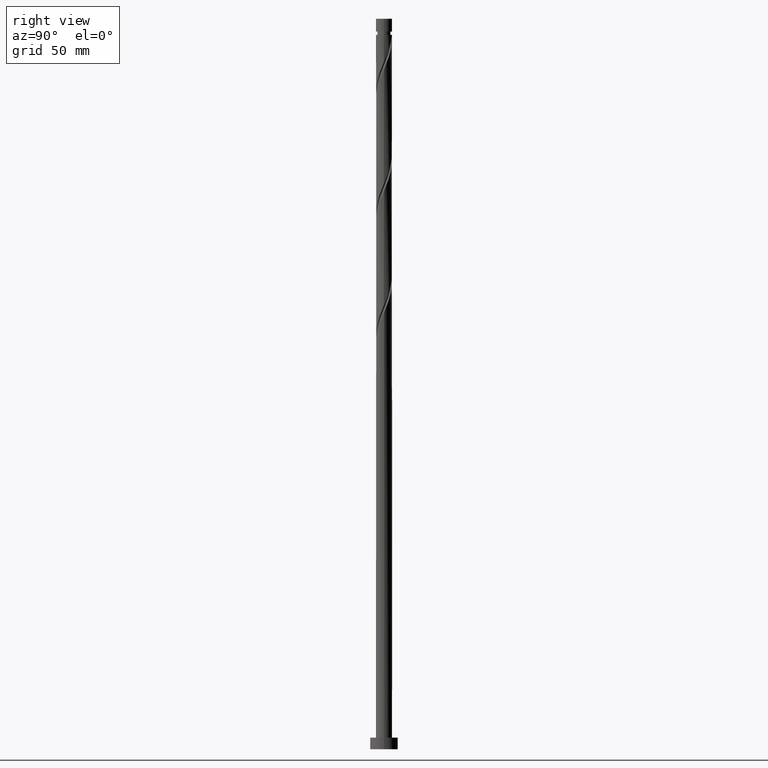
[diagram: clean part render]
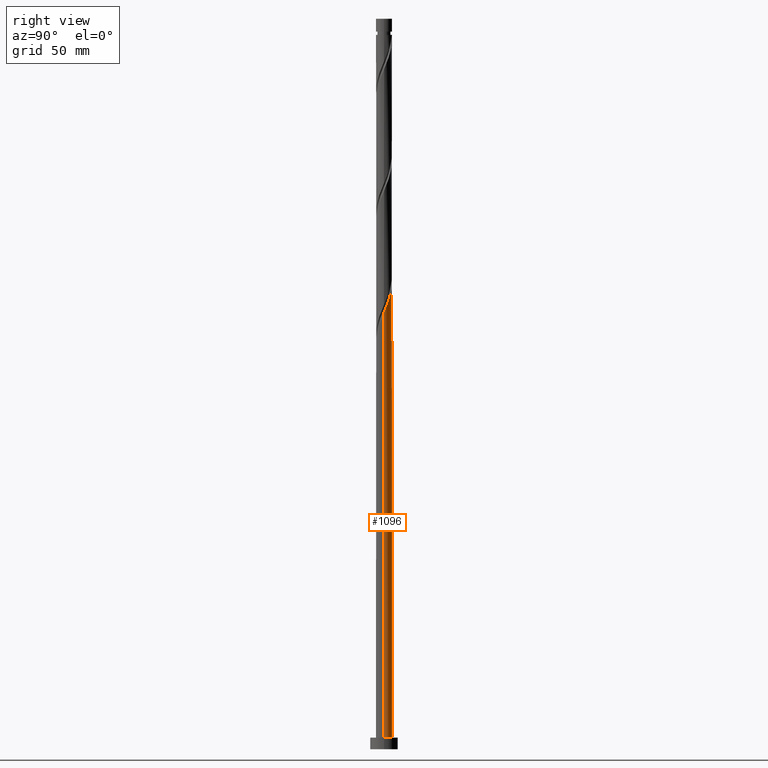
[diagram: same view with one face highlighted and labeled with its STEP entity id]
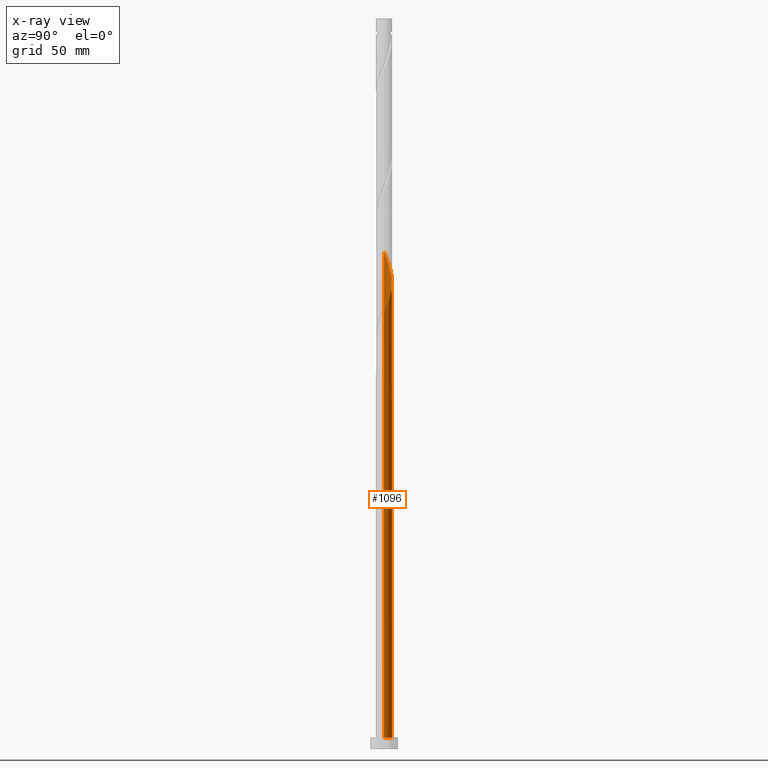
[diagram: x-ray of the same camera — body ghosted, the highlighted face saturated]
A machine part, right view. The second image highlights one B-rep face of the part: STEP entity #1096.
The next image is the same camera in x-ray: the body ghosted, the highlighted face saturated — about 0% of this face is hidden behind the body in this view.
In plain terms, the highlighted cylindrical surface (edge-blend (fillet) strip) has radius 3.5 mm, axis along (-0, -0, -1).
Its self-contained STEP definition (entity closure, byte-faithful):
#3 = CARTESIAN_POINT ( 'NONE',  ( 0.6964912059746368733, 3.429999999999997939, 150.5871629832717531 ) ) ;
#7 = CARTESIAN_POINT ( 'NONE',  ( 1.594031268282363190, 3.115937148874821983, 197.4621629832717531 ) ) ;
#18 = CARTESIAN_POINT ( 'NONE',  ( -1.082959389832018005, 3.351524288208268754, 151.5246629832717247 ) ) ;
#26 = ORIENTED_EDGE ( 'NONE', *, *, #1189, .F. ) ;
#38 = VERTEX_POINT ( 'NONE', #672 ) ;
#63 = CARTESIAN_POINT ( 'NONE',  ( -3.115937148874821983, 1.594031268282363190, 158.0871629832717815 ) ) ;
#106 = CARTESIAN_POINT ( 'NONE',  ( 3.500000000000002220, 0.3517632353407328383, 189.1259169843292511 ) ) ;
#121 = CARTESIAN_POINT ( 'NONE',  ( 3.351524288208268754, 1.082959389832017116, 190.8996629832717247 ) ) ;
#126 = DIRECTION ( 'NONE',  ( 1.000000000000000000, 0.000000000000000000, 0.000000000000000000 ) ) ;
#142 = CARTESIAN_POINT ( 'NONE',  ( 3.189018865137824399, 1.442275520764011665, 191.8371629832717531 ) ) ;
#181 = CARTESIAN_POINT ( 'NONE',  ( -3.026513442067374715, 1.801591651696004659, 160.8996629832717815 ) ) ;
#183 = VERTEX_POINT ( 'NONE', #3 ) ;
#206 = CARTESIAN_POINT ( 'NONE',  ( -1.945113067390055850, 2.936332959584742497, 157.1496629832717531 ) ) ;
#207 =( BOUNDED_CURVE ( )  B_SPLINE_CURVE ( 2, ( #467, #18, #1079, #456, #1049, #629, #1067, #1422, #63, #1696, #996, #531, #1705, #1551, #1840 ),
 .UNSPECIFIED., .F., .T. ) 
 B_SPLINE_CURVE_WITH_KNOTS ( ( 3, 2, 2, 2, 2, 2, 2, 3 ),
 ( 0.000000000000000000, 0.008928571428571396851, 0.01785714285714290472, 0.02678571428571430157, 0.03571428571428569843, 0.04464285714285709528, 0.05357142857142860315, 0.05453034012992180601 ),
 .UNSPECIFIED. ) 
 CURVE ( )  GEOMETRIC_REPRESENTATION_ITEM ( )  RATIONAL_B_SPLINE_CURVE ( ( 0.9090909090909449208, 0.9033747362666201264, 0.9090909090909449208, 0.9033747362666201264, 0.9090909090909449208, 0.9033747362666201264, 0.9090909090909449208, 0.9033747362666201264, 0.9090909090909449208, 0.9033747362666201264, 0.9090909090909449208, 0.9033747362666201264, 0.9090909090909449208, 0.9084770030214869285, 0.9079949616362154030 ) ) 
 REPRESENTATION_ITEM ( '' )  );
#216 = DIRECTION ( 'NONE',  ( -0.000000000000000000, -0.000000000000000000, -1.000000000000000000 ) ) ;
#219 = EDGE_CURVE ( 'NONE', #892, #297, #230, .T. ) ;
#223 = CARTESIAN_POINT ( 'NONE',  ( -3.500000000000000888, 0.3517632353407167956, 164.5484089822142835 ) ) ;
#230 = CIRCLE ( 'NONE', #1281, 3.500000000000000000 ) ;
#260 = CARTESIAN_POINT ( 'NONE',  ( -0.4784591944698668997, 3.489497513067245205, 153.3996629832717247 ) ) ;
#261 = CARTESIAN_POINT ( 'NONE',  ( 0.08421808617630736904, 3.498986612429495047, 201.2121629832718099 ) ) ;
#276 = ORIENTED_EDGE ( 'NONE', *, *, #1120, .F. ) ;
#286 = CARTESIAN_POINT ( 'NONE',  ( -1.442275520764012553, 3.189018865137823511, 204.9621629832717815 ) ) ;
#297 = VERTEX_POINT ( 'NONE', #1221 ) ;
#327 = CARTESIAN_POINT ( 'NONE',  ( -3.500000000000006217, 0.04211514008235339029, 214.4372832171407310 ) ) ;
#343 = ORIENTED_EDGE ( 'NONE', *, *, #1302, .T. ) ;
#393 = CARTESIAN_POINT ( 'NONE',  ( -2.429884585352364290, 2.549740574321678999, 207.7746629832716962 ) ) ;
#410 = CARTESIAN_POINT ( 'NONE',  ( 3.500000000000005329, 6.194196011433276529E-16, 188.2876459053656788 ) ) ;
#440 = CARTESIAN_POINT ( 'NONE',  ( -3.498986612429495491, 0.08421808617630661964, 214.3371629832717815 ) ) ;
#442 = ORIENTED_EDGE ( 'NONE', *, *, #1872, .F. ) ;
#456 = CARTESIAN_POINT ( 'NONE',  ( -1.801591651696006213, 3.026513442067377824, 153.3996629832717531 ) ) ;
#467 = CARTESIAN_POINT ( 'NONE',  ( -0.6964912059746359851, 3.430000000000005489, 150.5871629832717531 ) ) ;
#477 = CARTESIAN_POINT ( 'NONE',  ( -3.500000000000005329, -1.119433014114447406E-15, 214.5376459053657641 ) ) ;
#485 = VECTOR ( 'NONE', #216, 1000.000000000000000 ) ;
#487 = CARTESIAN_POINT ( 'NONE',  ( -3.429999999999998384, 0.6964912059746363182, 163.7121629832717247 ) ) ;
#497 = CARTESIAN_POINT ( 'NONE',  ( -1.242949469174664312, 3.295541338164893919, 155.2746629832718099 ) ) ;
#515 = CARTESIAN_POINT ( 'NONE',  ( -0.08421808617630573146, 3.498986612429489718, 152.4621629832717815 ) ) ;
#524 = DIRECTION ( 'NONE',  ( -0.000000000000000000, -0.000000000000000000, -1.000000000000000000 ) ) ;
#531 = CARTESIAN_POINT ( 'NONE',  ( -3.489497513067249201, 0.4784591944698682320, 160.8996629832716962 ) ) ;
#546 = CARTESIAN_POINT ( 'NONE',  ( 3.500000000000005329, 6.194196011433275543E-16, 188.2876459053657072 ) ) ;
#556 = CARTESIAN_POINT ( 'NONE',  ( -1.082959389832018005, 3.351524288208268754, 204.0246629832717247 ) ) ;
#578 = CARTESIAN_POINT ( 'NONE',  ( 2.247426820855869423, 2.683108772468555170, 195.5871629832718384 ) ) ;
#589 = CARTESIAN_POINT ( 'NONE',  ( -3.489497513067249201, 0.4784591944698682320, 213.3996629832717531 ) ) ;
#629 = CARTESIAN_POINT ( 'NONE',  ( -2.429884585352364290, 2.549740574321678999, 155.2746629832717531 ) ) ;
#630 = CARTESIAN_POINT ( 'NONE',  ( -3.499999999999999112, -7.776328004715082621E-15, 165.3866800611778842 ) ) ;
#645 = CARTESIAN_POINT ( 'NONE',  ( -3.351524288208263425, 1.082959389832017116, 162.7746629832718099 ) ) ;
#658 = LINE ( 'NONE', #1853, #1597 ) ;
#668 = ORIENTED_EDGE ( 'NONE', *, *, #796, .F. ) ;
#672 = CARTESIAN_POINT ( 'NONE',  ( -0.6964912059746359851, 3.430000000000005489, 150.5871629832717531 ) ) ;
#706 = CARTESIAN_POINT ( 'NONE',  ( 0.4784591944698689536, 3.489497513067249201, 200.2746629832716962 ) ) ;
#715 = CARTESIAN_POINT ( 'NONE',  ( 0.000000000000000000, 0.000000000000000000, 5.000000000000000000 ) ) ;
#720 = DIRECTION ( 'NONE',  ( -0.000000000000000000, -0.000000000000000000, -1.000000000000000000 ) ) ;
#772 = VERTEX_POINT ( 'NONE', #831 ) ;
#777 = CIRCLE ( 'NONE', #1060, 3.500000000000000000 ) ;
#796 = EDGE_CURVE ( 'NONE', #1051, #772, #1297, .T. ) ;
#803 = CARTESIAN_POINT ( 'NONE',  ( -1.594031268282360303, 3.115937148874817986, 156.2121629832717815 ) ) ;
#812 = VECTOR ( 'NONE', #524, 1000.000000000000000 ) ;
#821 = CARTESIAN_POINT ( 'NONE',  ( 3.500000000000000000, 4.286263797015736595E-16, 5.000000000000000000 ) ) ;
#831 = CARTESIAN_POINT ( 'NONE',  ( -3.499999999999999112, -7.776328004715082621E-15, 165.3866800611778842 ) ) ;
#845 = EDGE_CURVE ( 'NONE', #1176, #297, #953, .T. ) ;
#855 = EDGE_LOOP ( 'NONE', ( #276, #1526, #899, #1274, #26, #343, #442, #668 ) ) ;
#878 = DIRECTION ( 'NONE',  ( -1.000000000000000000, 0.000000000000000000, 0.000000000000000000 ) ) ;
#890 = CARTESIAN_POINT ( 'NONE',  ( -2.115738118524185918, 2.788127008194528411, 206.8371629832717531 ) ) ;
#892 = VERTEX_POINT ( 'NONE', #821 ) ;
#896 = CARTESIAN_POINT ( 'NONE',  ( 1.945113067390059403, 2.936332959584744717, 196.5246629832716962 ) ) ;
#899 = ORIENTED_EDGE ( 'NONE', *, *, #219, .T. ) ;
#940 = EDGE_CURVE ( 'NONE', #1883, #892, #658, .T. ) ;
#951 = CARTESIAN_POINT ( 'NONE',  ( -2.549740574321675446, 2.429884585352360737, 159.0246629832718099 ) ) ;
#953 = LINE ( 'NONE', #1701, #485 ) ;
#996 = CARTESIAN_POINT ( 'NONE',  ( -3.392519425616074891, 0.8607043318222677986, 159.9621629832717531 ) ) ;
#1012 = CARTESIAN_POINT ( 'NONE',  ( -3.500000000000005329, -1.119433014114447406E-15, 214.5376459053657356 ) ) ;
#1022 = CARTESIAN_POINT ( 'NONE',  ( -3.115937148874821983, 1.594031268282363190, 210.5871629832717247 ) ) ;
#1049 = CARTESIAN_POINT ( 'NONE',  ( -2.115738118524185918, 2.788127008194528411, 154.3371629832717815 ) ) ;
#1051 = VERTEX_POINT ( 'NONE', #1012 ) ;
#1060 = AXIS2_PLACEMENT_3D ( 'NONE', #1130, #1184, #1774 ) ;
#1067 = CARTESIAN_POINT ( 'NONE',  ( -2.683108772468555614, 2.247426820855869423, 156.2121629832717531 ) ) ;
#1079 = CARTESIAN_POINT ( 'NONE',  ( -1.442275520764012553, 3.189018865137823511, 152.4621629832717815 ) ) ;
#1080 = CARTESIAN_POINT ( 'NONE',  ( -3.189018865137818182, 1.442275520764010777, 161.8371629832717531 ) ) ;
#1096 = ADVANCED_FACE ( 'NONE', ( #1924 ), #1194, .T. ) ;
#1100 = CARTESIAN_POINT ( 'NONE',  ( -2.788127008194524858, 2.115738118524183253, 159.9621629832717247 ) ) ;
#1109 = CARTESIAN_POINT ( 'NONE',  ( -0.8607043318222656891, 3.392519425616069562, 154.3371629832718384 ) ) ;
#1111 = DIRECTION ( 'NONE',  ( -0.000000000000000000, -0.000000000000000000, -1.000000000000000000 ) ) ;
#1120 = EDGE_CURVE ( 'NONE', #1883, #1051, #1812, .T. ) ;
#1130 = CARTESIAN_POINT ( 'NONE',  ( 0.000000000000000000, 0.000000000000000000, 150.5871629832717531 ) ) ;
#1137 = CARTESIAN_POINT ( 'NONE',  ( 0.6964912059746368733, 3.429999999999997939, 150.5871629832717247 ) ) ;
#1147 = CARTESIAN_POINT ( 'NONE',  ( 1.242949469174667199, 3.295541338164897915, 198.3996629832716962 ) ) ;
#1163 = CARTESIAN_POINT ( 'NONE',  ( -1.801591651696006213, 3.026513442067377824, 205.8996629832716962 ) ) ;
#1176 = VERTEX_POINT ( 'NONE', #1663 ) ;
#1184 = DIRECTION ( 'NONE',  ( 0.000000000000000000, -0.000000000000000000, -1.000000000000000000 ) ) ;
#1189 = EDGE_CURVE ( 'NONE', #38, #1176, #207, .T. ) ;
#1194 = CYLINDRICAL_SURFACE ( 'NONE', #1813, 3.500000000000000000 ) ;
#1215 = CARTESIAN_POINT ( 'NONE',  ( -3.295541338164898360, 1.242949469174666088, 211.5246629832717247 ) ) ;
#1221 = CARTESIAN_POINT ( 'NONE',  ( -3.500000000000000000, 0.000000000000000000, 5.000000000000000000 ) ) ;
#1274 = ORIENTED_EDGE ( 'NONE', *, *, #845, .F. ) ;
#1281 = AXIS2_PLACEMENT_3D ( 'NONE', #715, #1481, #126 ) ;
#1296 = CARTESIAN_POINT ( 'NONE',  ( 0.3100230221172554645, 3.508475711791736007, 151.5246629832718099 ) ) ;
#1297 = LINE ( 'NONE', #1870, #812 ) ;
#1302 = EDGE_CURVE ( 'NONE', #38, #183, #777, .T. ) ;
#1327 = CARTESIAN_POINT ( 'NONE',  ( -0.6964912059746358741, 3.430000000000005045, 203.0871629832717815 ) ) ;
#1335 = CARTESIAN_POINT ( 'NONE',  ( -0.3100230221172543543, 3.508475711791739116, 202.1496629832716962 ) ) ;
#1347 = CARTESIAN_POINT ( 'NONE',  ( 3.430000000000005045, 0.6964912059746359851, 189.9621629832717815 ) ) ;
#1384 = CARTESIAN_POINT ( 'NONE',  ( -3.392519425616074891, 0.8607043318222677986, 212.4621629832717815 ) ) ;
#1422 = CARTESIAN_POINT ( 'NONE',  ( -2.936332959584746050, 1.945113067390058736, 157.1496629832717531 ) ) ;
#1473 =( BOUNDED_CURVE ( )  B_SPLINE_CURVE ( 2, ( #630, #223, #487, #645, #1080, #181, #1100, #951, #1552, #206, #803, #497, #1109, #260, #515, #1296, #1137 ),
 .UNSPECIFIED., .F., .T. ) 
 B_SPLINE_CURVE_WITH_KNOTS ( ( 3, 2, 2, 2, 2, 2, 2, 2, 3 ),
 ( 0.9295303401299218615, 0.9375000000000000000, 0.9464285714285713969, 0.9553571428571429047, 0.9642857142857143016, 0.9732142857142856984, 0.9821428571428570953, 0.9910714285714286031, 1.000000000000000000 ),
 .UNSPECIFIED. ) 
 CURVE ( )  GEOMETRIC_REPRESENTATION_ITEM ( )  RATIONAL_B_SPLINE_CURVE ( ( 0.9079949616362089637, 0.9039886423360716794, 0.9090909090909385926, 0.9033747362666134650, 0.9090909090909385926, 0.9033747362666134650, 0.9090909090909385926, 0.9033747362666134650, 0.9090909090909385926, 0.9033747362666134650, 0.9090909090909385926, 0.9033747362666134650, 0.9090909090909385926, 0.9033747362666134650, 0.9090909090909385926, 0.9033747362666134650, 0.9090909090909385926 ) ) 
 REPRESENTATION_ITEM ( '' )  );
#1481 = DIRECTION ( 'NONE',  ( 0.000000000000000000, 0.000000000000000000, 1.000000000000000000 ) ) ;
#1526 = ORIENTED_EDGE ( 'NONE', *, *, #940, .T. ) ;
#1551 = CARTESIAN_POINT ( 'NONE',  ( -3.500000000000004885, 0.04211514008237746826, 161.9372832171405889 ) ) ;
#1552 = CARTESIAN_POINT ( 'NONE',  ( -2.247426820855865870, 2.683108772468551617, 158.0871629832717815 ) ) ;
#1597 = VECTOR ( 'NONE', #1111, 1000.000000000000000 ) ;
#1612 = CARTESIAN_POINT ( 'NONE',  ( 2.549740574321678999, 2.429884585352363402, 194.6496629832717531 ) ) ;
#1644 = CARTESIAN_POINT ( 'NONE',  ( 0.000000000000000000, 0.000000000000000000, 315.0000000000000000 ) ) ;
#1663 = CARTESIAN_POINT ( 'NONE',  ( -3.500000000000005329, 8.627097095442008069E-15, 162.0376459053656788 ) ) ;
#1696 = CARTESIAN_POINT ( 'NONE',  ( -3.295541338164898360, 1.242949469174666088, 159.0246629832717247 ) ) ;
#1701 = CARTESIAN_POINT ( 'NONE',  ( -3.500000000000000000, 0.000000000000000000, 315.0000000000000000 ) ) ;
#1705 = CARTESIAN_POINT ( 'NONE',  ( -3.498986612429495491, 0.08421808617630661964, 161.8371629832717247 ) ) ;
#1744 = CARTESIAN_POINT ( 'NONE',  ( 0.8607043318222682426, 3.392519425616075335, 199.3371629832717247 ) ) ;
#1761 = CARTESIAN_POINT ( 'NONE',  ( 3.026513442067377824, 1.801591651696005547, 192.7746629832717247 ) ) ;
#1773 = CARTESIAN_POINT ( 'NONE',  ( -2.936332959584746050, 1.945113067390058736, 209.6496629832716962 ) ) ;
#1774 = DIRECTION ( 'NONE',  ( -1.000000000000000000, 0.000000000000000000, 0.000000000000000000 ) ) ;
#1812 =( BOUNDED_CURVE ( )  B_SPLINE_CURVE ( 2, ( #546, #106, #1347, #121, #142, #1761, #1897, #1612, #578, #896, #7, #1147, #1744, #706, #261, #1335, #1327, #556, #286, #1163, #890, #393, #1909, #1773, #1022, #1215, #1384, #589, #440, #327, #477 ),
 .UNSPECIFIED., .F., .T. ) 
 B_SPLINE_CURVE_WITH_KNOTS ( ( 3, 2, 2, 2, 2, 2, 2, 2, 2, 2, 2, 2, 2, 2, 2, 3 ),
 ( 0.1795303401299222501, 0.1875000000000000000, 0.1964285714285713969, 0.2053571428571429047, 0.2142857142857143016, 0.2232142857142856984, 0.2321428571428570953, 0.2410714285714286031, 0.2500000000000000000, 0.2589285714285713969, 0.2678571428571429047, 0.2767857142857143016, 0.2857142857142856984, 0.2946428571428570953, 0.3035714285714286031, 0.3045303401299223611 ),
 .UNSPECIFIED. ) 
 CURVE ( )  GEOMETRIC_REPRESENTATION_ITEM ( )  RATIONAL_B_SPLINE_CURVE ( ( 0.9079949616362148479, 0.9039886423360784518, 0.9090909090909449208, 0.9033747362666201264, 0.9090909090909449208, 0.9033747362666201264, 0.9090909090909449208, 0.9033747362666201264, 0.9090909090909449208, 0.9033747362666201264, 0.9090909090909449208, 0.9033747362666201264, 0.9090909090909449208, 0.9033747362666201264, 0.9090909090909449208, 0.9033747362666201264, 0.9090909090909449208, 0.9033747362666201264, 0.9090909090909449208, 0.9033747362666201264, 0.9090909090909449208, 0.9033747362666201264, 0.9090909090909449208, 0.9033747362666201264, 0.9090909090909449208, 0.9033747362666201264, 0.9090909090909449208, 0.9033747362666201264, 0.9090909090909449208, 0.9084770030214864844, 0.9079949616362148479 ) ) 
 REPRESENTATION_ITEM ( '' )  );
#1813 = AXIS2_PLACEMENT_3D ( 'NONE', #1644, #720, #878 ) ;
#1840 = CARTESIAN_POINT ( 'NONE',  ( -3.500000000000005329, 8.627097095442008069E-15, 162.0376459053656788 ) ) ;
#1853 = CARTESIAN_POINT ( 'NONE',  ( 3.500000000000000000, 4.286263797015736595E-16, 315.0000000000000000 ) ) ;
#1870 = CARTESIAN_POINT ( 'NONE',  ( -3.500000000000000000, 0.000000000000000000, 315.0000000000000000 ) ) ;
#1872 = EDGE_CURVE ( 'NONE', #772, #183, #1473, .T. ) ;
#1883 = VERTEX_POINT ( 'NONE', #410 ) ;
#1897 = CARTESIAN_POINT ( 'NONE',  ( 2.788127008194529743, 2.115738118524185474, 193.7121629832717531 ) ) ;
#1909 = CARTESIAN_POINT ( 'NONE',  ( -2.683108772468555614, 2.247426820855869423, 208.7121629832718384 ) ) ;
#1924 = FACE_OUTER_BOUND ( 'NONE', #855, .T. ) ;